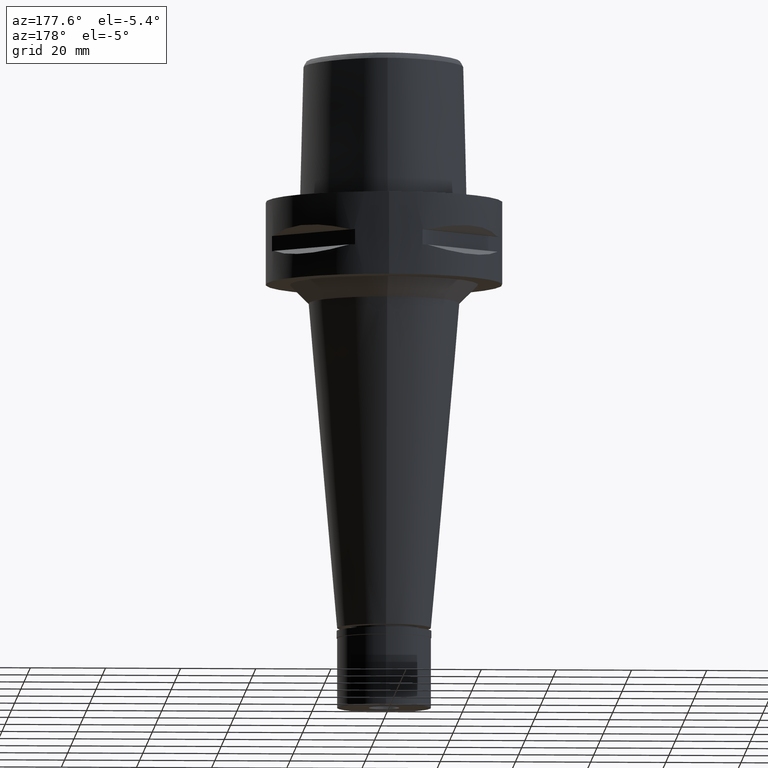
[diagram: clean part render]
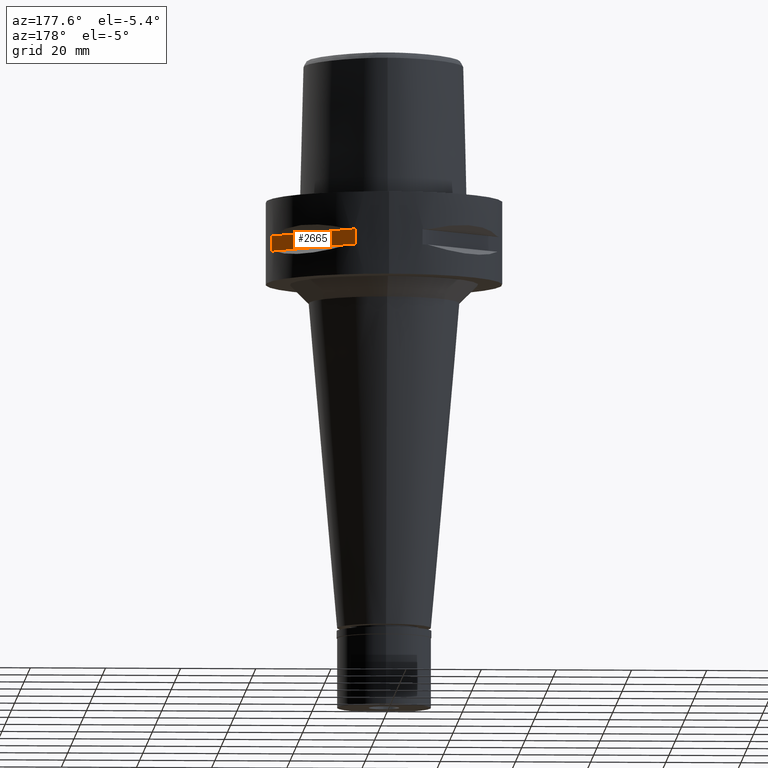
[diagram: same view with one face highlighted and labeled with its STEP entity id]
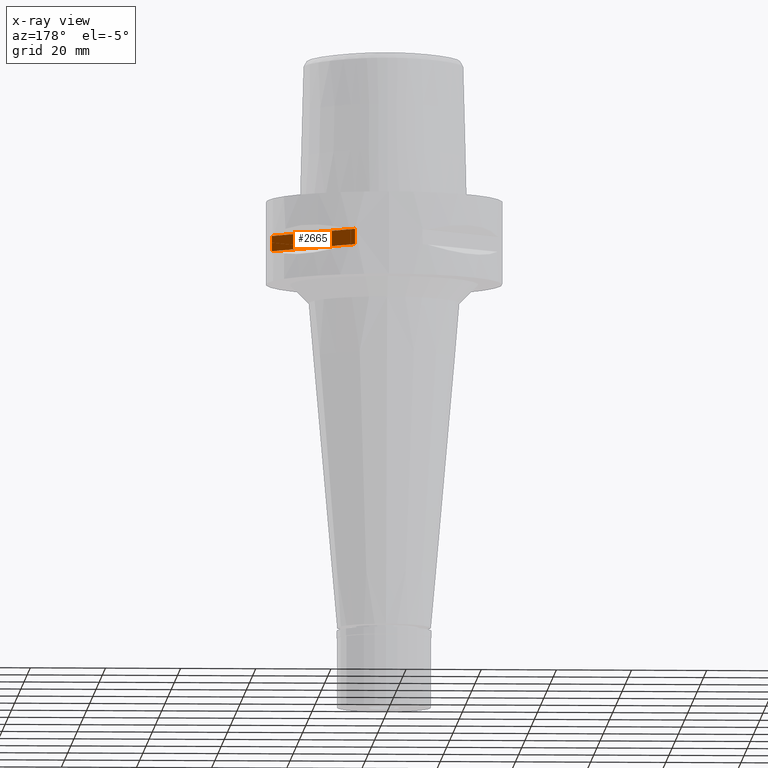
[diagram: x-ray of the same camera — body ghosted, the highlighted face saturated]
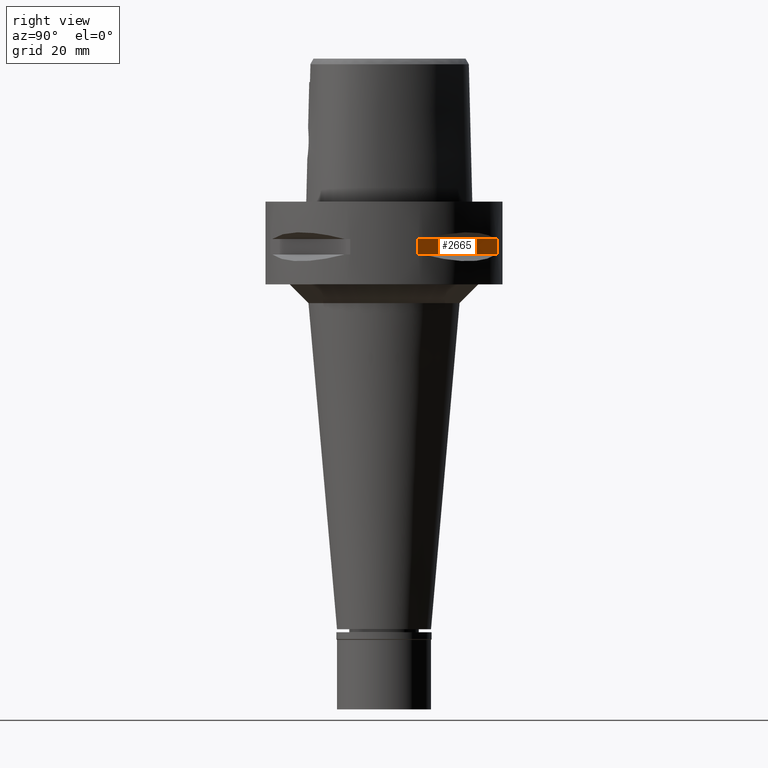
[diagram: same view with one face highlighted and labeled with its STEP entity id]
A machine part, auxiliary view. The second image highlights one B-rep face of the part: STEP entity #2665.
The next image is the same camera in x-ray: the body ghosted, the highlighted face saturated — about 0% of this face is hidden behind the body in this view.
A second angle (right view) of the same face is appended — the face is thin or edge-on in the first view.
In plain terms, the highlighted planar face has unit normal (-0.7071, -0.7071, 0).
Its self-contained STEP definition (entity closure, byte-faithful):
#79 = CARTESIAN_POINT ( 'NONE',  ( 30.19251670572000279, 8.981198972017999438, -14.05000000000000071 ) ) ;
#330 = DIRECTION ( 'NONE',  ( 0.0000000000000000000, 0.0000000000000000000, -1.000000000000000000 ) ) ;
#339 = VERTEX_POINT ( 'NONE', #1764 ) ;
#378 = PLANE ( 'NONE',  #1221 ) ;
#558 = VERTEX_POINT ( 'NONE', #4986 ) ;
#665 = VECTOR ( 'NONE', #2212, 1000.000000000000114 ) ;
#696 = LINE ( 'NONE', #3762, #1461 ) ;
#708 = ORIENTED_EDGE ( 'NONE', *, *, #3480, .F. ) ;
#731 = CARTESIAN_POINT ( 'NONE',  ( 8.981198972019999616, 30.19251670572000279, -14.05000000000000071 ) ) ;
#1179 = LINE ( 'NONE', #3020, #1949 ) ;
#1221 = AXIS2_PLACEMENT_3D ( 'NONE', #2349, #2717, #4196 ) ;
#1432 = CARTESIAN_POINT ( 'NONE',  ( 30.19251670572000279, 8.981198972017999438, -14.05000000000000071 ) ) ;
#1461 = VECTOR ( 'NONE', #330, 1000.000000000000000 ) ;
#1533 = DIRECTION ( 'NONE',  ( 0.0000000000000000000, 0.0000000000000000000, 1.000000000000000000 ) ) ;
#1764 = CARTESIAN_POINT ( 'NONE',  ( 8.981198972017999438, 30.19251670572000279, -9.950000000000001066 ) ) ;
#1788 = EDGE_LOOP ( 'NONE', ( #708, #1938, #3759, #4411 ) ) ;
#1923 = CARTESIAN_POINT ( 'NONE',  ( 30.19251670572000279, 8.981198972017999438, -9.950000000000001066 ) ) ;
#1931 = EDGE_CURVE ( 'NONE', #558, #4751, #696, .T. ) ;
#1938 = ORIENTED_EDGE ( 'NONE', *, *, #1931, .T. ) ;
#1949 = VECTOR ( 'NONE', #1533, 1000.000000000000000 ) ;
#2212 = DIRECTION ( 'NONE',  ( -0.7071067811865474617, 0.7071067811865474617, 0.0000000000000000000 ) ) ;
#2349 = CARTESIAN_POINT ( 'NONE',  ( 5.444722215136000187, 33.72899346260000186, -9.950000000000001066 ) ) ;
#2384 = DIRECTION ( 'NONE',  ( -0.7071067811865474617, 0.7071067811865474617, 0.0000000000000000000 ) ) ;
#2603 = EDGE_CURVE ( 'NONE', #4685, #339, #1179, .T. ) ;
#2665 = ADVANCED_FACE ( 'NONE', ( #5012 ), #378, .F. ) ;
#2675 = LINE ( 'NONE', #1923, #665 ) ;
#2717 = DIRECTION ( 'NONE',  ( -0.7071067811865475727, -0.7071067811865475727, 0.0000000000000000000 ) ) ;
#3020 = CARTESIAN_POINT ( 'NONE',  ( 8.981198972017999438, 30.19251670572000279, -14.05000000000000071 ) ) ;
#3480 = EDGE_CURVE ( 'NONE', #558, #339, #2675, .T. ) ;
#3629 = EDGE_CURVE ( 'NONE', #4751, #4685, #4763, .T. ) ;
#3759 = ORIENTED_EDGE ( 'NONE', *, *, #3629, .T. ) ;
#3762 = CARTESIAN_POINT ( 'NONE',  ( 30.19251670572000279, 8.981198972017999438, -9.950000000000001066 ) ) ;
#4196 = DIRECTION ( 'NONE',  ( -0.7071067811865475727, 0.7071067811865475727, 0.0000000000000000000 ) ) ;
#4324 = VECTOR ( 'NONE', #2384, 1000.000000000000114 ) ;
#4411 = ORIENTED_EDGE ( 'NONE', *, *, #2603, .T. ) ;
#4685 = VERTEX_POINT ( 'NONE', #731 ) ;
#4751 = VERTEX_POINT ( 'NONE', #1432 ) ;
#4763 = LINE ( 'NONE', #79, #4324 ) ;
#4986 = CARTESIAN_POINT ( 'NONE',  ( 30.19251670572000279, 8.981198972019999616, -9.950000000000001066 ) ) ;
#5012 = FACE_OUTER_BOUND ( 'NONE', #1788, .T. ) ;